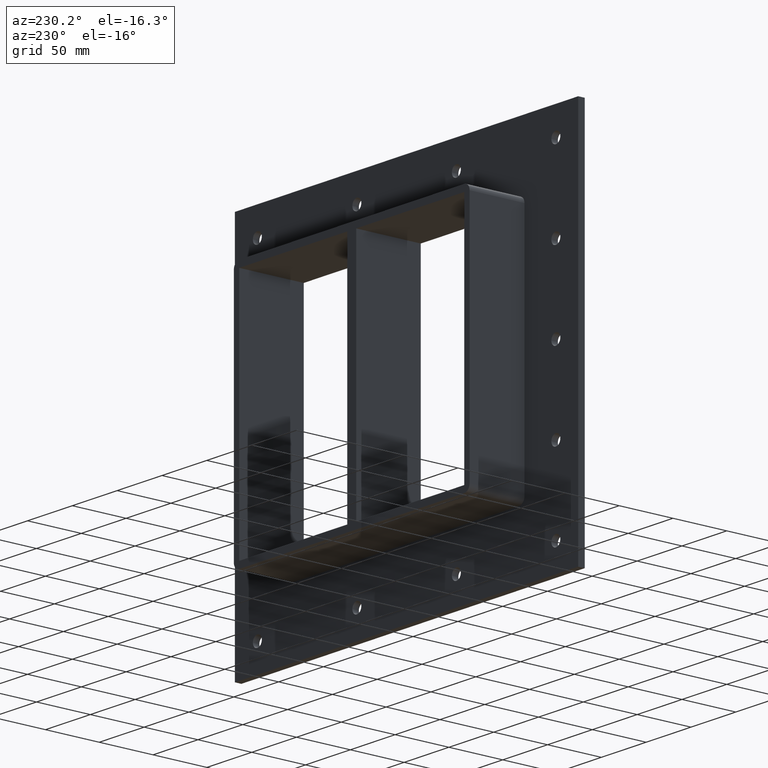
[diagram: clean part render]
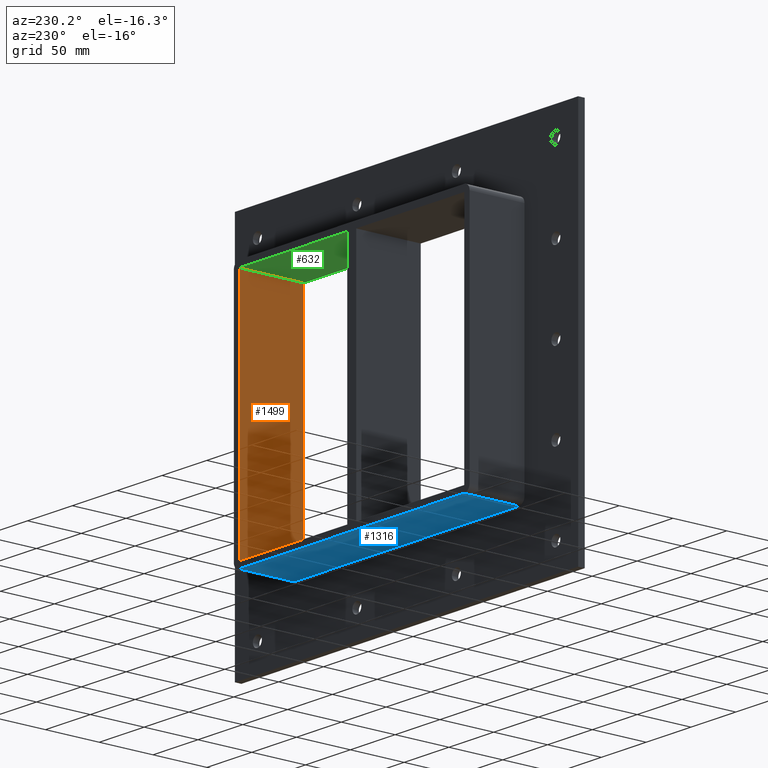
[diagram: same view with three faces highlighted in distinct colors, each labeled with its STEP entity id]
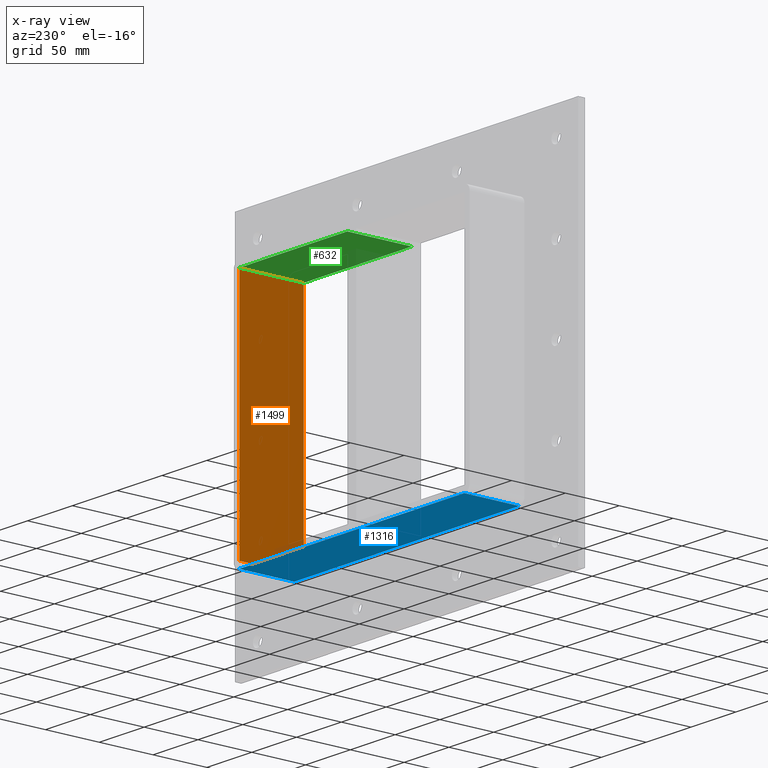
[diagram: x-ray of the same camera — body ghosted, the three highlighted faces saturated]
A machine part, auxiliary view with three faces highlighted in distinct colors.
The next image is the same camera in x-ray (body ghosted, the three faces saturated) — at least one of them is partly hidden behind the body in this view.
Their STEP definitions:

[orange] entity #1499 — the highlighted planar face has unit normal (1, 0, 0).
#577=CARTESIAN_POINT('',(125.49999999999999,-3.0,-109.00000000000003));
#578=VERTEX_POINT('',#577);
#585=CARTESIAN_POINT('',(125.49999999999999,57.0,-109.00000000000003));
#586=VERTEX_POINT('',#585);
#587=CARTESIAN_POINT('',(125.49999999999999,56.999999999999993,-109.00000000000003));
#588=DIRECTION('',(0.0,-1.0,0.0));
#589=VECTOR('',#588,59.999999999999993);
#590=LINE('',#587,#589);
#591=EDGE_CURVE('',#586,#578,#590,.T.);
#608=CARTESIAN_POINT('',(125.49999999999999,57.0,108.99999999999999));
#609=VERTEX_POINT('',#608);
#616=CARTESIAN_POINT('',(125.49999999999999,-3.0,108.99999999999999));
#617=VERTEX_POINT('',#616);
#618=CARTESIAN_POINT('',(125.49999999999999,-3.0,108.99999999999999));
#619=DIRECTION('',(0.0,1.0,0.0));
#620=VECTOR('',#619,60.0);
#621=LINE('',#618,#620);
#622=EDGE_CURVE('',#617,#609,#621,.T.);
#1382=CARTESIAN_POINT('',(125.49999999999999,-3.0,108.99999999999999));
#1383=DIRECTION('',(0.0,0.0,-1.0));
#1384=VECTOR('',#1383,218.0);
#1385=LINE('',#1382,#1384);
#1386=EDGE_CURVE('',#617,#578,#1385,.T.);
#1483=CARTESIAN_POINT('',(125.49999999999999,0.0,108.99999999999999));
#1484=DIRECTION('',(1.0,0.0,0.0));
#1485=DIRECTION('',(0.0,0.0,-1.0));
#1486=AXIS2_PLACEMENT_3D('',#1483,#1484,#1485);
#1487=PLANE('',#1486);
#1488=ORIENTED_EDGE('',*,*,#591,.T.);
#1489=ORIENTED_EDGE('',*,*,#1386,.F.);
#1490=ORIENTED_EDGE('',*,*,#622,.T.);
#1491=CARTESIAN_POINT('',(125.49999999999999,57.0,-109.0));
#1492=DIRECTION('',(0.0,0.0,1.0));
#1493=VECTOR('',#1492,218.0);
#1494=LINE('',#1491,#1493);
#1495=EDGE_CURVE('',#586,#609,#1494,.T.);
#1496=ORIENTED_EDGE('',*,*,#1495,.F.);
#1497=EDGE_LOOP('',(#1488,#1489,#1490,#1496));
#1498=FACE_OUTER_BOUND('',#1497,.T.);
#1499=ADVANCED_FACE('',(#1498),#1487,.F.);

[blue] entity #1316 — the highlighted planar face has unit normal (0, 0, -1).
#745=CARTESIAN_POINT('',(-125.5,6.000000000000001,-115.0));
#746=VERTEX_POINT('',#745);
#756=CARTESIAN_POINT('',(125.5,6.000000000000001,-115.0));
#757=VERTEX_POINT('',#756);
#758=CARTESIAN_POINT('',(125.5,6.000000000000001,-115.0));
#759=DIRECTION('',(-1.0,0.0,0.0));
#760=VECTOR('',#759,251.0);
#761=LINE('',#758,#760);
#762=EDGE_CURVE('',#757,#746,#761,.T.);
#1225=CARTESIAN_POINT('',(125.5,57.0,-115.0));
#1226=VERTEX_POINT('',#1225);
#1227=CARTESIAN_POINT('',(125.5,6.000000000000001,-115.0));
#1228=DIRECTION('',(0.0,1.0,0.0));
#1229=VECTOR('',#1228,51.0);
#1230=LINE('',#1227,#1229);
#1231=EDGE_CURVE('',#757,#1226,#1230,.T.);
#1293=CARTESIAN_POINT('',(131.5,0.0,-115.0));
#1294=DIRECTION('',(0.0,0.0,-1.0));
#1295=DIRECTION('',(-1.0,0.0,0.0));
#1296=AXIS2_PLACEMENT_3D('',#1293,#1294,#1295);
#1297=PLANE('',#1296);
#1298=ORIENTED_EDGE('',*,*,#762,.T.);
#1299=CARTESIAN_POINT('',(-125.50000000000003,57.0,-115.0));
#1300=VERTEX_POINT('',#1299);
#1301=CARTESIAN_POINT('',(-125.5,57.0,-115.0));
#1302=DIRECTION('',(0.0,-1.0,0.0));
#1303=VECTOR('',#1302,51.0);
#1304=LINE('',#1301,#1303);
#1305=EDGE_CURVE('',#1300,#746,#1304,.T.);
#1306=ORIENTED_EDGE('',*,*,#1305,.F.);
#1307=CARTESIAN_POINT('',(125.5,57.0,-115.0));
#1308=DIRECTION('',(-1.0,0.0,0.0));
#1309=VECTOR('',#1308,251.0);
#1310=LINE('',#1307,#1309);
#1311=EDGE_CURVE('',#1226,#1300,#1310,.T.);
#1312=ORIENTED_EDGE('',*,*,#1311,.F.);
#1313=ORIENTED_EDGE('',*,*,#1231,.F.);
#1314=EDGE_LOOP('',(#1298,#1306,#1312,#1313));
#1315=FACE_OUTER_BOUND('',#1314,.T.);
#1316=ADVANCED_FACE('',(#1315),#1297,.T.);

[green] entity #632 — the highlighted planar face has unit normal (0, 0, 1).
#505=CARTESIAN_POINT('',(5.0,-3.0,108.99999999999999));
#506=VERTEX_POINT('',#505);
#523=CARTESIAN_POINT('',(5.0,57.0,108.99999999999999));
#524=VERTEX_POINT('',#523);
#531=CARTESIAN_POINT('',(5.0,-3.0,108.99999999999999));
#532=DIRECTION('',(0.0,1.0,0.0));
#533=VECTOR('',#532,60.000000000000007);
#534=LINE('',#531,#533);
#535=EDGE_CURVE('',#506,#524,#534,.T.);
#602=CARTESIAN_POINT('',(-125.5,0.0,108.99999999999999));
#603=DIRECTION('',(0.0,0.0,1.0));
#604=DIRECTION('',(1.0,0.0,0.0));
#605=AXIS2_PLACEMENT_3D('',#602,#603,#604);
#606=PLANE('',#605);
#607=ORIENTED_EDGE('',*,*,#535,.T.);
#608=CARTESIAN_POINT('',(125.49999999999999,57.0,108.99999999999999));
#609=VERTEX_POINT('',#608);
#610=CARTESIAN_POINT('',(125.5,57.0,108.99999999999999));
#611=DIRECTION('',(-1.0,0.0,0.0));
#612=VECTOR('',#611,120.5);
#613=LINE('',#610,#612);
#614=EDGE_CURVE('',#609,#524,#613,.T.);
#615=ORIENTED_EDGE('',*,*,#614,.F.);
#616=CARTESIAN_POINT('',(125.49999999999999,-3.0,108.99999999999999));
#617=VERTEX_POINT('',#616);
#618=CARTESIAN_POINT('',(125.49999999999999,-3.0,108.99999999999999));
#619=DIRECTION('',(0.0,1.0,0.0));
#620=VECTOR('',#619,60.0);
#621=LINE('',#618,#620);
#622=EDGE_CURVE('',#617,#609,#621,.T.);
#623=ORIENTED_EDGE('',*,*,#622,.F.);
#624=CARTESIAN_POINT('',(5.0,-3.0,108.99999999999999));
#625=DIRECTION('',(1.0,0.0,0.0));
#626=VECTOR('',#625,120.5);
#627=LINE('',#624,#626);
#628=EDGE_CURVE('',#506,#617,#627,.T.);
#629=ORIENTED_EDGE('',*,*,#628,.F.);
#630=EDGE_LOOP('',(#607,#615,#623,#629));
#631=FACE_OUTER_BOUND('',#630,.T.);
#632=ADVANCED_FACE('',(#631),#606,.F.);